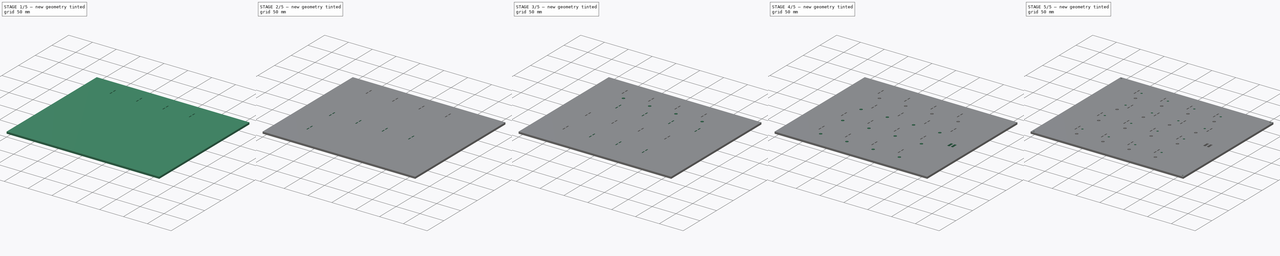
[diagram: build sequence overview — one tinted view per stage of 5, left to right]
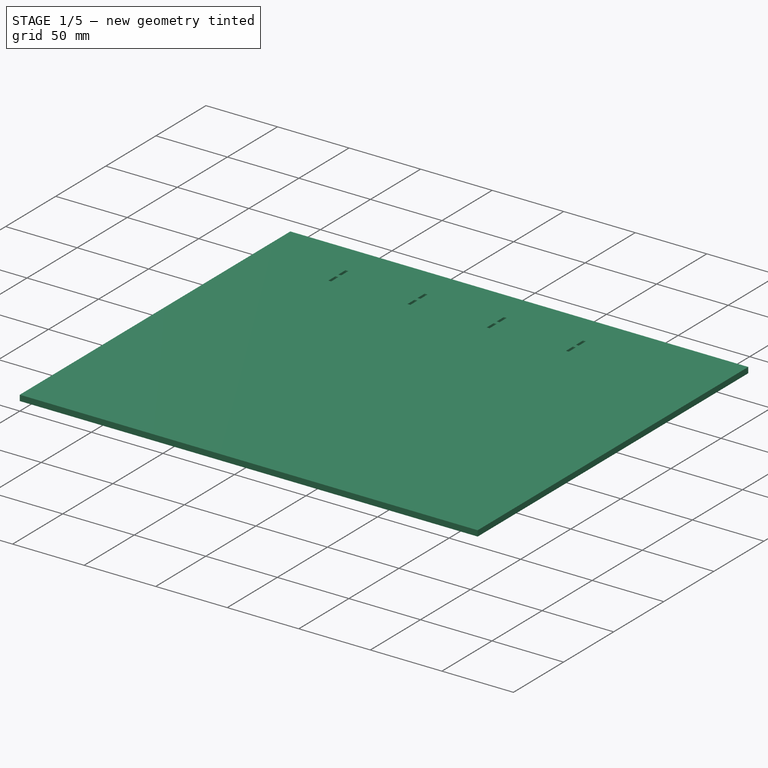
[diagram: stage 1 of 5 — iso view after this stage's code; geometry added in this stage tinted green]
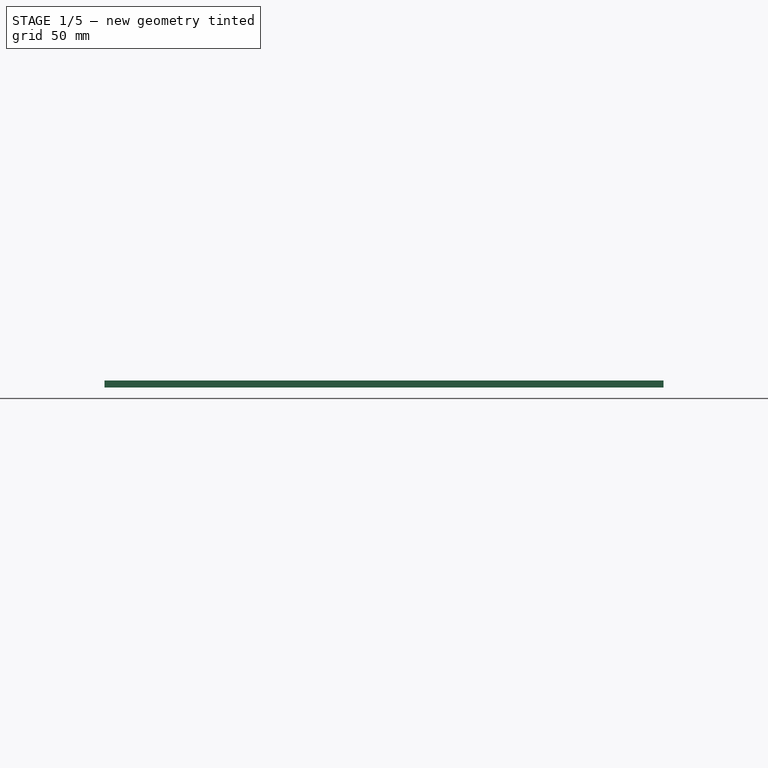
[diagram: stage 1 of 5 — front view after this stage's code; geometry added in this stage tinted green]
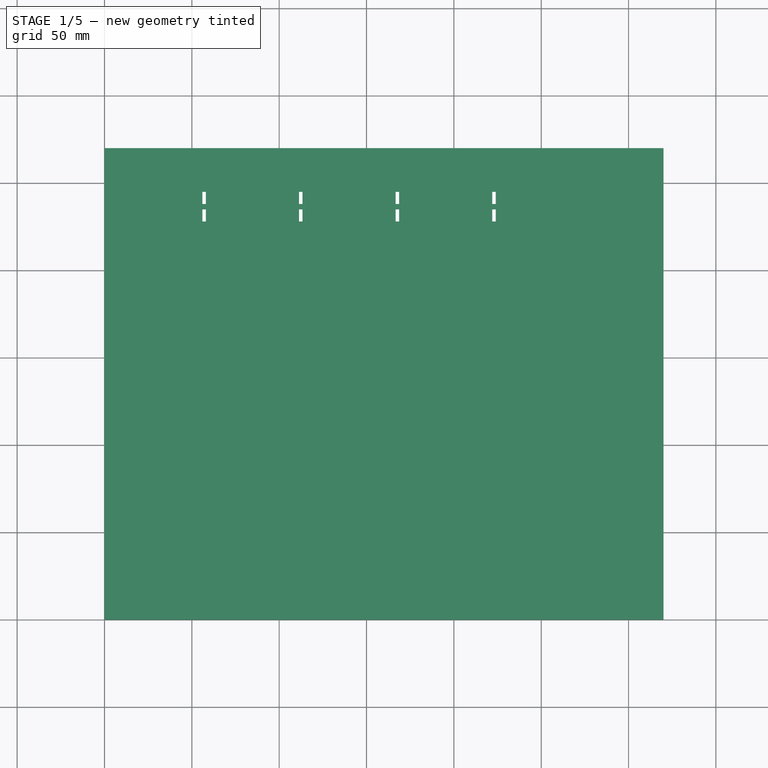
[diagram: stage 1 of 5 — top view after this stage's code; geometry added in this stage tinted green]
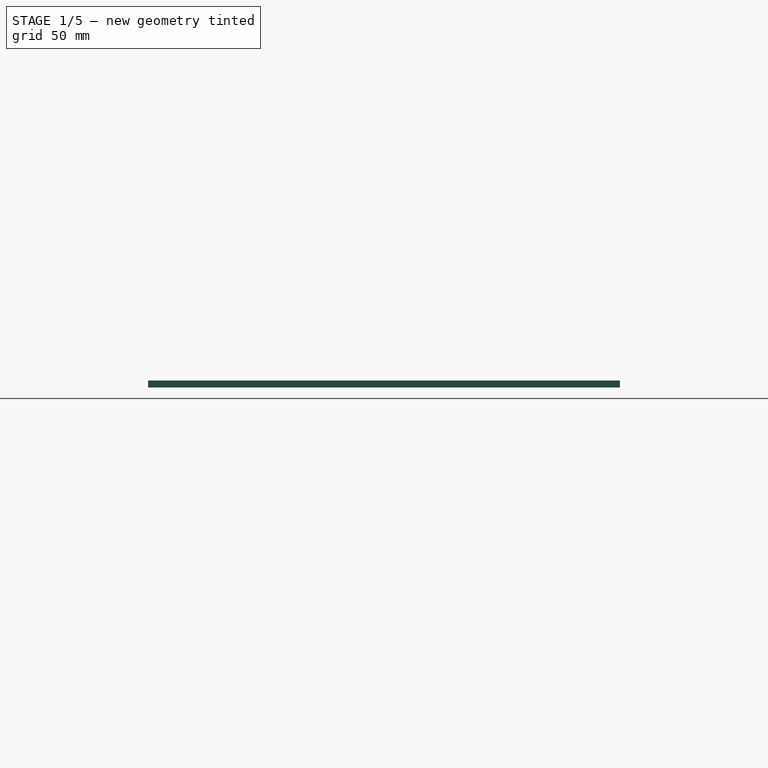
[diagram: stage 1 of 5 — right view after this stage's code; geometry added in this stage tinted green]
FCSTD DOCUMENT  (FreeCAD 0.14R3700 (Git))
Label: interFace-4mm
License: CC-BY 3.0
LicenseURL: http://creativecommons.org/licenses/by/3.0/
objects: Sketcher::SketchObject×10, PartDesign::Pocket×10, PartDesign::LinearPattern×5, Part::Box×1
note: 36 computed .brp shape members not serialized (recipe doc carries the construction recipe); baked Part::Feature solids carry a one-line shape summary decoded from their .brp

FEATURE [Part::Box] Box  label="Cubo"
  Height = 4
  Length = 320
  Width = 270
FEATURE [Sketcher::SketchObject] Sketch
  ExternalGeometry = -> [Box]
  Placement = pos=(0,0,4) rot=(0,0,1;0rad)
  Support = -> Box [Face6]
  sketch-geometry (8):
    g0: LineSegment StartX=56 StartY=245 StartZ=0 EndX=58 EndY=245 EndZ=0
    g1: LineSegment StartX=58 StartY=245 StartZ=0 EndX=58 EndY=238 EndZ=0
    g2: LineSegment StartX=58 StartY=238 StartZ=0 EndX=56 EndY=238 EndZ=0
    g3: LineSegment StartX=56 StartY=238 StartZ=0 EndX=56 EndY=245 EndZ=0
    g4: LineSegment StartX=58 StartY=235 StartZ=0 EndX=56 EndY=235 EndZ=0
    g5: LineSegment StartX=56 StartY=235 StartZ=0 EndX=56 EndY=228 EndZ=0
    g6: LineSegment StartX=56 StartY=228 StartZ=0 EndX=58 EndY=228 EndZ=0
    g7: LineSegment StartX=58 StartY=228 StartZ=0 EndX=58 EndY=235 EndZ=0
  constraints (28):
    c: Coincident(g0,g1)
    c: Coincident(g1,g2)
    c: Coincident(g2,g3)
    c: Coincident(g3,g0)
    c: Horizontal(g0)
    c: Horizontal(g2)
    c: Vertical(g1)
    c: Vertical(g3)
    c: Equal(g2,g0)
    c: Equal(g1,g3)
    c: DistanceX(g0) = 2
    c: DistanceY(g3) = 7
    c: DistanceY(g0,g-3) = 25
    c: DistanceX(g0,g-3) = -56
    c: Coincident(g4,g5)
    c: Coincident(g5,g6)
    c: Coincident(g6,g7)
    c: Coincident(g7,g4)
    c: Horizontal(g4)
    c: Horizontal(g6)
    c: Vertical(g5)
    c: Vertical(g7)
    c: Equal(g4,g6)
    c: DistanceX(g4) = -2
    c: Equal(g7,g5)
    c: DistanceY(g7) = 7
    c: DistanceX(g4,g-3) = -56
    c: DistanceY(g4,g-3) = 35
FEATURE [PartDesign::Pocket] Pocket
  Length = 5
  Sketch = -> Sketch
  Type = 0
FEATURE [PartDesign::LinearPattern] LinearPattern
  Direction = -> Sketch [H_Axis]
  Length = 166
  Occurrences = 4
  Originals = -> [Pocket]
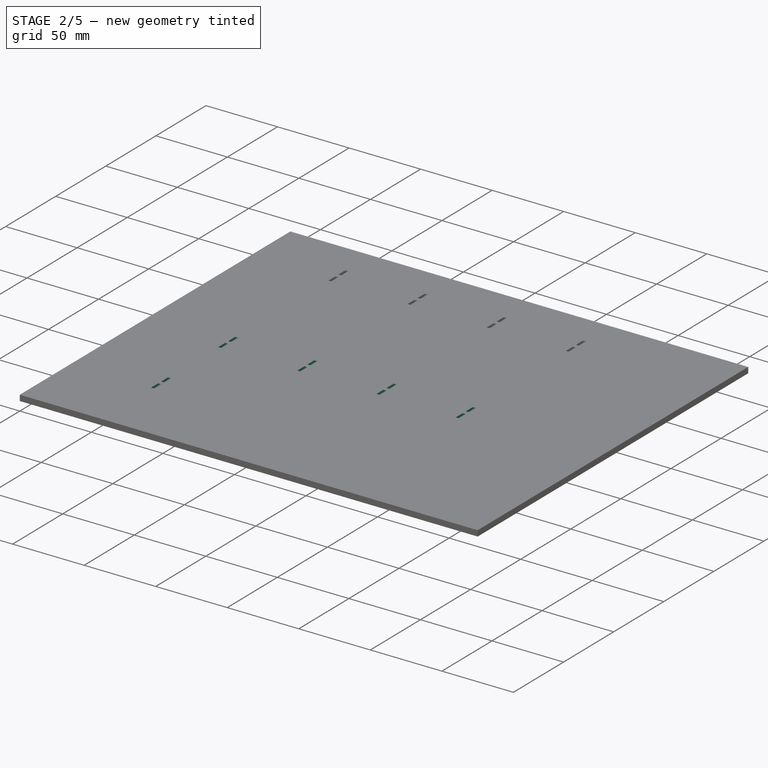
[diagram: stage 2 of 5 — iso view after this stage's code; geometry added in this stage tinted green]
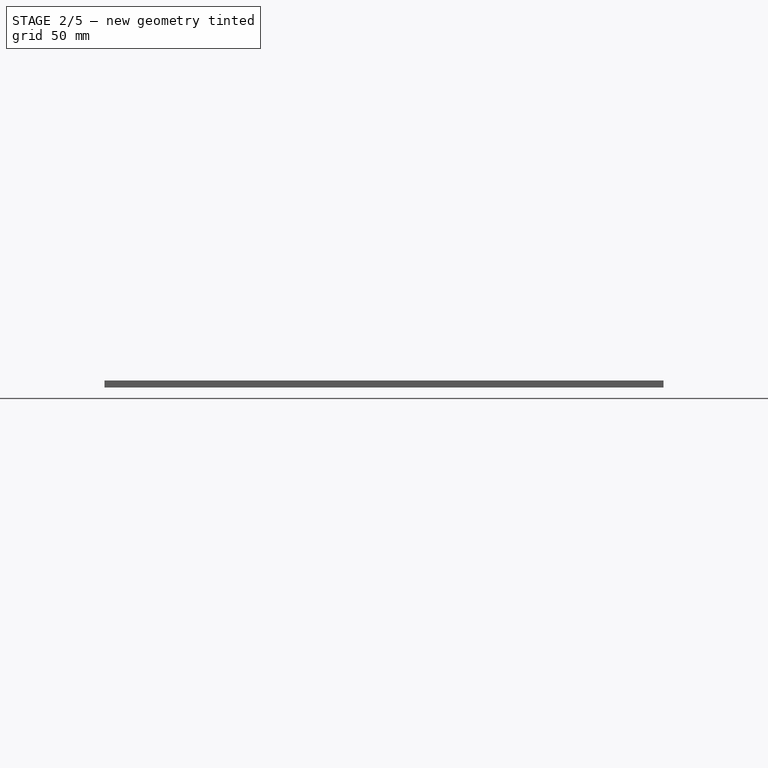
[diagram: stage 2 of 5 — front view after this stage's code; geometry added in this stage tinted green]
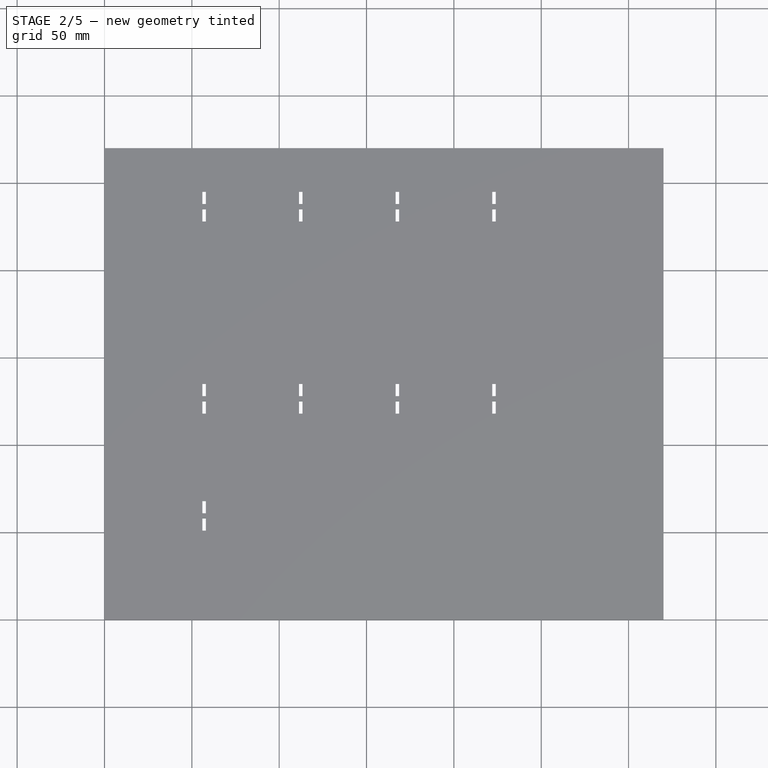
[diagram: stage 2 of 5 — top view after this stage's code; geometry added in this stage tinted green]
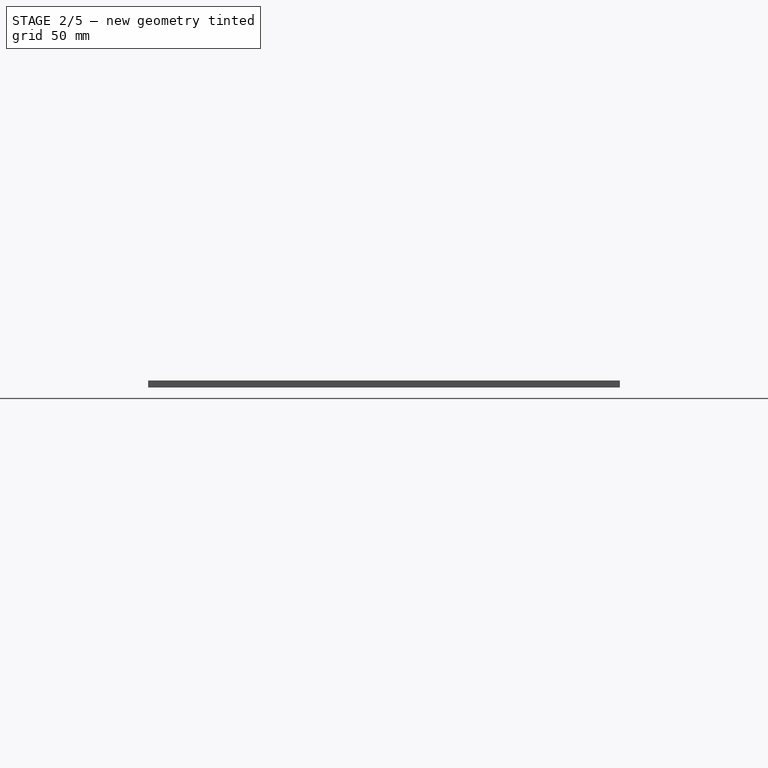
[diagram: stage 2 of 5 — right view after this stage's code; geometry added in this stage tinted green]
FEATURE [Sketcher::SketchObject] Sketch001
  ExternalGeometry = -> [LinearPattern]
  Placement = pos=(0,0,4) rot=(0,0,1;0rad)
  Support = -> LinearPattern [Face3]
  sketch-geometry (8):
    g0: LineSegment StartX=58 StartY=135 StartZ=0 EndX=56 EndY=135 EndZ=0
    g1: LineSegment StartX=56 StartY=135 StartZ=0 EndX=56 EndY=128 EndZ=0
    g2: LineSegment StartX=56 StartY=128 StartZ=0 EndX=58 EndY=128 EndZ=0
    g3: LineSegment StartX=58 StartY=128 StartZ=0 EndX=58 EndY=135 EndZ=0
    g4: LineSegment StartX=58 StartY=125 StartZ=0 EndX=56 EndY=125 EndZ=0
    g5: LineSegment StartX=56 StartY=125 StartZ=0 EndX=56 EndY=118 EndZ=0
    g6: LineSegment StartX=56 StartY=118 StartZ=0 EndX=58 EndY=118 EndZ=0
    g7: LineSegment StartX=58 StartY=118 StartZ=0 EndX=58 EndY=125 EndZ=0
  constraints (28):
    c: Coincident(g0,g1)
    c: Coincident(g1,g2)
    c: Coincident(g2,g3)
    c: Coincident(g3,g0)
    c: Horizontal(g0)
    c: Horizontal(g2)
    c: Vertical(g1)
    c: Vertical(g3)
    c: Coincident(g4,g5)
    c: Coincident(g5,g6)
    c: Coincident(g6,g7)
    c: Coincident(g7,g4)
    c: Horizontal(g4)
    c: Horizontal(g6)
    c: Vertical(g5)
    c: Vertical(g7)
    c: Equal(g0,g2)
    c: Equal(g2,g4)
    c: Equal(g4,g6)
    c: Equal(g3,g1)
    c: Equal(g1,g5)
    c: Equal(g5,g7)
    c: DistanceX(g0) = -2
    c: DistanceY(g7) = 7
    c: DistanceY(g0,g-3) = 135
    c: DistanceX(g0,g-3) = -56
    c: DistanceX(g4,g-3) = -56
    c: DistanceY(g4,g-3) = 145
FEATURE [PartDesign::Pocket] Pocket001
  Length = 5
  Sketch = -> Sketch001
  Type = 0
FEATURE [PartDesign::LinearPattern] LinearPattern001
  Direction = -> Sketch001 [H_Axis]
  Length = 166
  Occurrences = 4
  Originals = -> [Pocket001]
FEATURE [Sketcher::SketchObject] Sketch002
  ExternalGeometry = -> [LinearPattern001]
  Placement = pos=(0,0,4) rot=(0,0,1;0rad)
  Support = -> LinearPattern001 [Face3]
  sketch-geometry (8):
    g0: LineSegment StartX=58 StartY=68 StartZ=0 EndX=56 EndY=68 EndZ=0
    g1: LineSegment StartX=56 StartY=68 StartZ=0 EndX=56 EndY=61 EndZ=0
    g2: LineSegment StartX=56 StartY=61 StartZ=0 EndX=58 EndY=61 EndZ=0
    g3: LineSegment StartX=58 StartY=61 StartZ=0 EndX=58 EndY=68 EndZ=0
    g4: LineSegment StartX=58 StartY=58 StartZ=0 EndX=56 EndY=58 EndZ=0
    g5: LineSegment StartX=56 StartY=58 StartZ=0 EndX=56 EndY=51 EndZ=0
    g6: LineSegment StartX=56 StartY=51 StartZ=0 EndX=58 EndY=51 EndZ=0
    g7: LineSegment StartX=58 StartY=51 StartZ=0 EndX=58 EndY=58 EndZ=0
  constraints (28):
    c: Coincident(g0,g1)
    c: Coincident(g1,g2)
    c: Coincident(g2,g3)
    c: Coincident(g3,g0)
    c: Horizontal(g0)
    c: Horizontal(g2)
    c: Vertical(g1)
    c: Vertical(g3)
    c: Coincident(g4,g5)
    c: Coincident(g5,g6)
    c: Coincident(g6,g7)
    c: Coincident(g7,g4)
    c: Horizontal(g4)
    c: Horizontal(g6)
    c: Vertical(g5)
    c: Vertical(g7)
    c: Equal(g0,g2)
    c: Equal(g2,g4)
    c: Equal(g4,g6)
    c: DistanceX(g0) = -2
    c: Equal(g7,g5)
    c: Equal(g5,g3)
    c: Equal(g3,g1)
    c: DistanceY(g3) = 7
    c: DistanceX(g-1,g5) = 56
    c: DistanceX(g-1,g1) = 56
    c: DistanceY(g-1,g5) = 51
    c: DistanceY(g-1,g1) = 61
FEATURE [PartDesign::Pocket] Pocket002
  Length = 5
  Sketch = -> Sketch002
  Type = 0
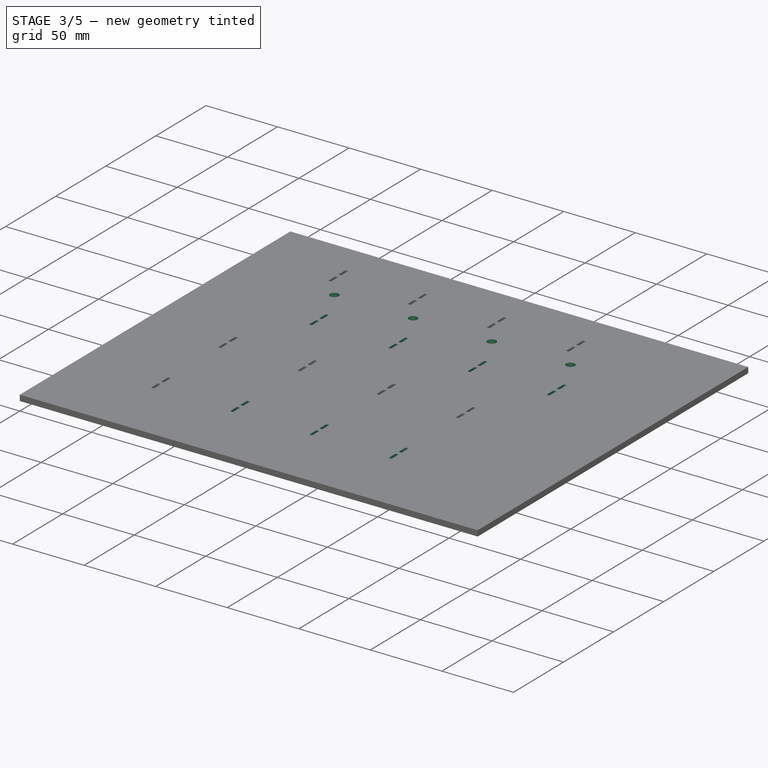
[diagram: stage 3 of 5 — iso view after this stage's code; geometry added in this stage tinted green]
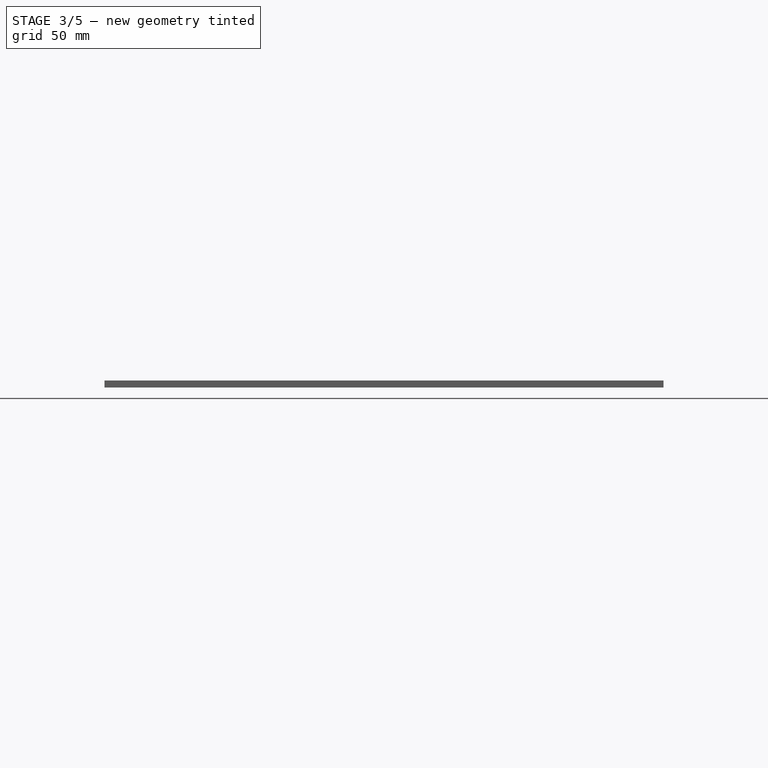
[diagram: stage 3 of 5 — front view after this stage's code; geometry added in this stage tinted green]
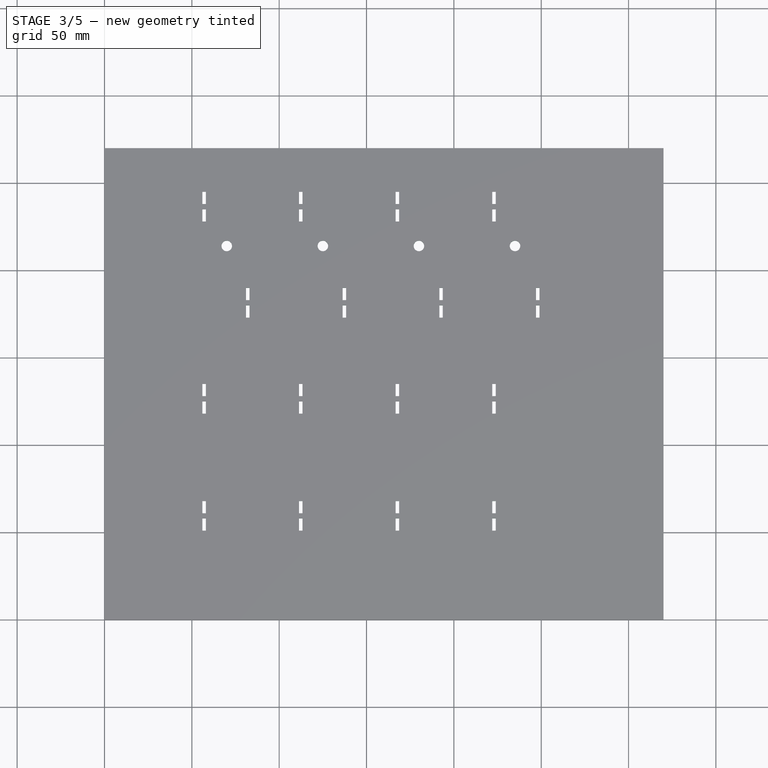
[diagram: stage 3 of 5 — top view after this stage's code; geometry added in this stage tinted green]
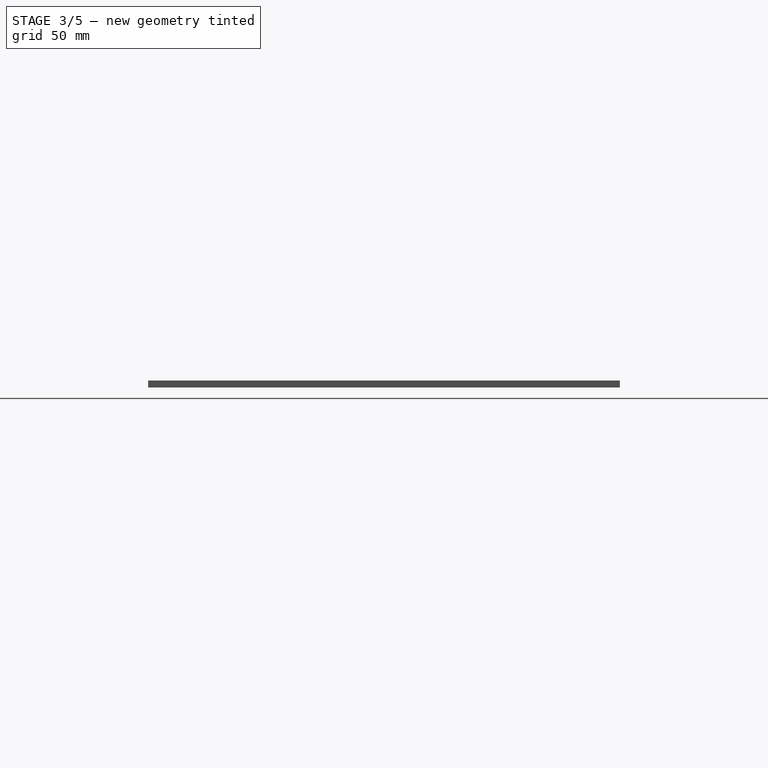
[diagram: stage 3 of 5 — right view after this stage's code; geometry added in this stage tinted green]
FEATURE [PartDesign::LinearPattern] LinearPattern002
  Direction = -> Sketch002 [H_Axis]
  Length = 166
  Occurrences = 4
  Originals = -> [Pocket002]
FEATURE [Sketcher::SketchObject] Sketch003
  ExternalGeometry = -> [LinearPattern002]
  Placement = pos=(0,0,4) rot=(0,0,1;0rad)
  Support = -> LinearPattern002 [Face3]
  sketch-geometry (8):
    g0: LineSegment StartX=83 StartY=190 StartZ=0 EndX=81 EndY=190 EndZ=0
    g1: LineSegment StartX=81 StartY=190 StartZ=0 EndX=81 EndY=183 EndZ=0
    g2: LineSegment StartX=81 StartY=183 StartZ=0 EndX=83 EndY=183 EndZ=0
    g3: LineSegment StartX=83 StartY=183 StartZ=0 EndX=83 EndY=190 EndZ=0
    g4: LineSegment StartX=83 StartY=180 StartZ=0 EndX=81 EndY=180 EndZ=0
    g5: LineSegment StartX=81 StartY=180 StartZ=0 EndX=81 EndY=173 EndZ=0
    g6: LineSegment StartX=81 StartY=173 StartZ=0 EndX=83 EndY=173 EndZ=0
    g7: LineSegment StartX=83 StartY=173 StartZ=0 EndX=83 EndY=180 EndZ=0
  constraints (28):
    c: Coincident(g0,g1)
    c: Coincident(g1,g2)
    c: Coincident(g2,g3)
    c: Coincident(g3,g0)
    c: Horizontal(g0)
    c: Horizontal(g2)
    c: Vertical(g1)
    c: Vertical(g3)
    c: Coincident(g4,g5)
    c: Coincident(g5,g6)
    c: Coincident(g6,g7)
    c: Coincident(g7,g4)
    c: Horizontal(g4)
    c: Horizontal(g6)
    c: Vertical(g5)
    c: Vertical(g7)
    c: Equal(g0,g2)
    c: Equal(g2,g4)
    c: Equal(g4,g6)
    c: Equal(g3,g1)
    c: Equal(g1,g5)
    c: Equal(g5,g7)
    c: DistanceX(g0) = -2
    c: DistanceY(g7) = 7
    c: DistanceX(g0,g-3) = -81
    c: DistanceY(g0,g-3) = 80
    c: DistanceY(g4,g-3) = 90
    c: DistanceX(g4,g-3) = -81
FEATURE [PartDesign::Pocket] Pocket003
  Length = 5
  Sketch = -> Sketch003
  Type = 0
FEATURE [PartDesign::LinearPattern] LinearPattern003
  Direction = -> Sketch003 [H_Axis]
  Length = 166
  Occurrences = 4
  Originals = -> [Pocket003]
FEATURE [Sketcher::SketchObject] Sketch004
  ExternalGeometry = -> [LinearPattern003]
  Placement = pos=(0,0,4) rot=(0,0,1;0rad)
  Support = -> LinearPattern003 [Face3]
  sketch-geometry (4):
    g0: Circle CenterX=70 CenterY=214 CenterZ=0 NormalX=0 NormalY=0 NormalZ=1 Radius=3
    g1: Circle CenterX=125 CenterY=214 CenterZ=0 NormalX=0 NormalY=0 NormalZ=1 Radius=3
    g2: Circle CenterX=180 CenterY=214 CenterZ=0 NormalX=0 NormalY=0 NormalZ=1 Radius=3
    g3: Circle CenterX=235 CenterY=214 CenterZ=0 NormalX=0 NormalY=0 NormalZ=1 Radius=3
  constraints (12):
    c: Radius(g0) = 3
    c: DistanceX(g0,g-3) = -70
    c: DistanceY(g0,g-3) = 56
    c: Equal(g0,g1)
    c: Equal(g1,g2)
    c: Equal(g2,g3)
    c: DistanceX(g0,g1) = 55
    c: DistanceY(g1,g-3) = 56
    c: DistanceX(g1,g2) = 55
    c: DistanceX(g2,g3) = 55
    c: DistanceY(g2,g-3) = 56
    c: DistanceY(g3,g-3) = 56
FEATURE [PartDesign::Pocket] Pocket004
  Length = 5
  Sketch = -> Sketch004
  Type = 0
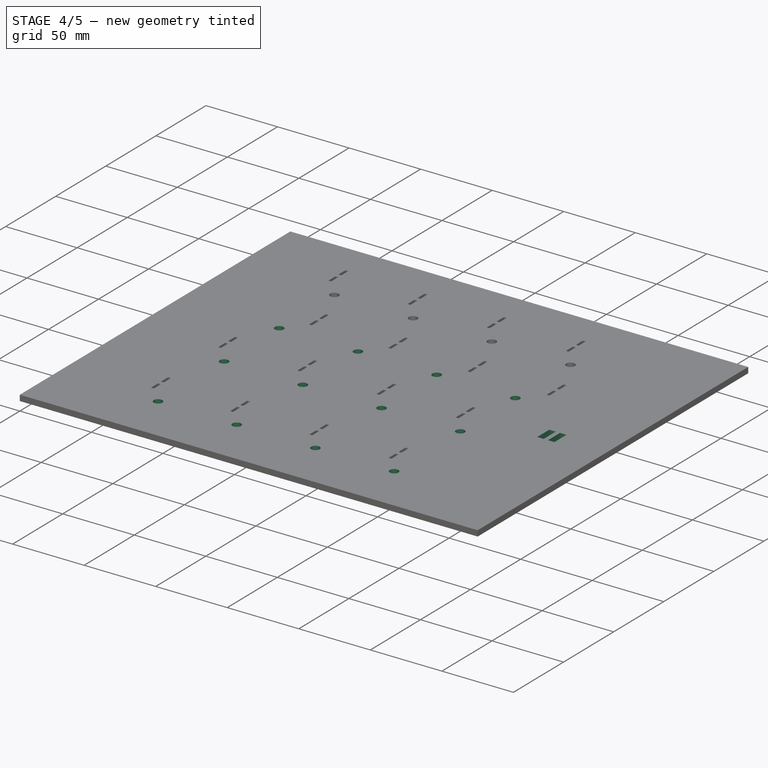
[diagram: stage 4 of 5 — iso view after this stage's code; geometry added in this stage tinted green]
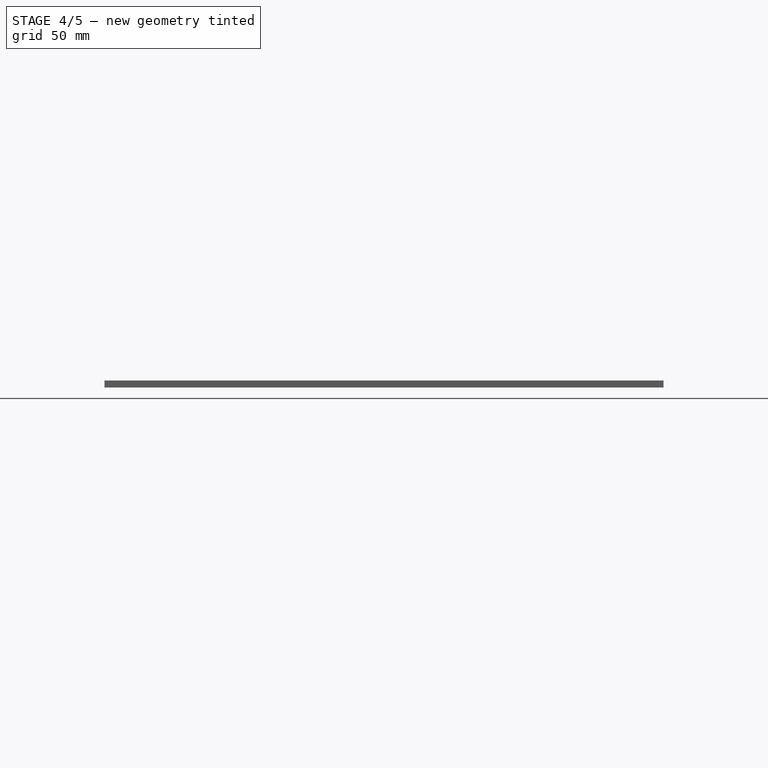
[diagram: stage 4 of 5 — front view after this stage's code; geometry added in this stage tinted green]
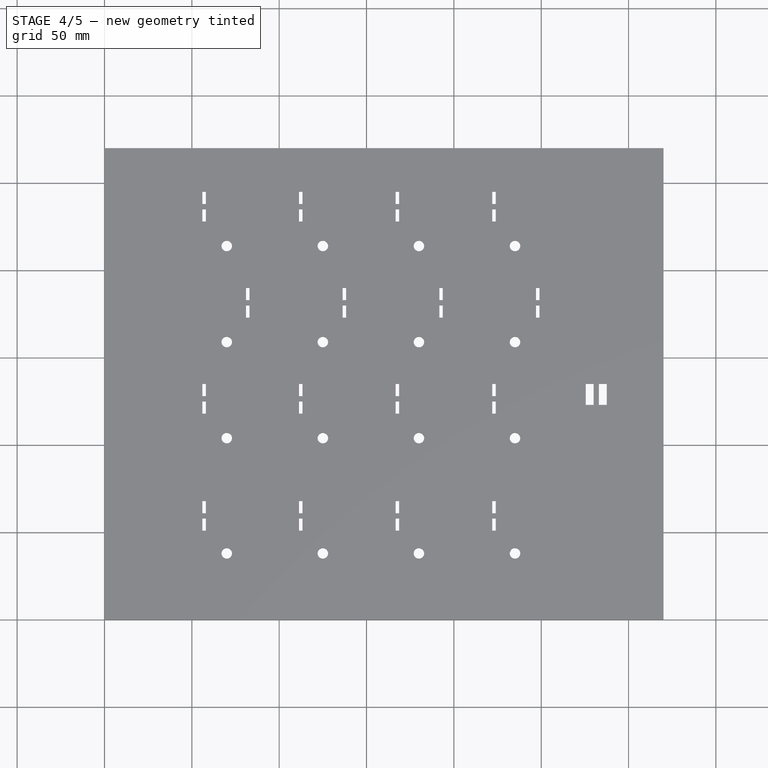
[diagram: stage 4 of 5 — top view after this stage's code; geometry added in this stage tinted green]
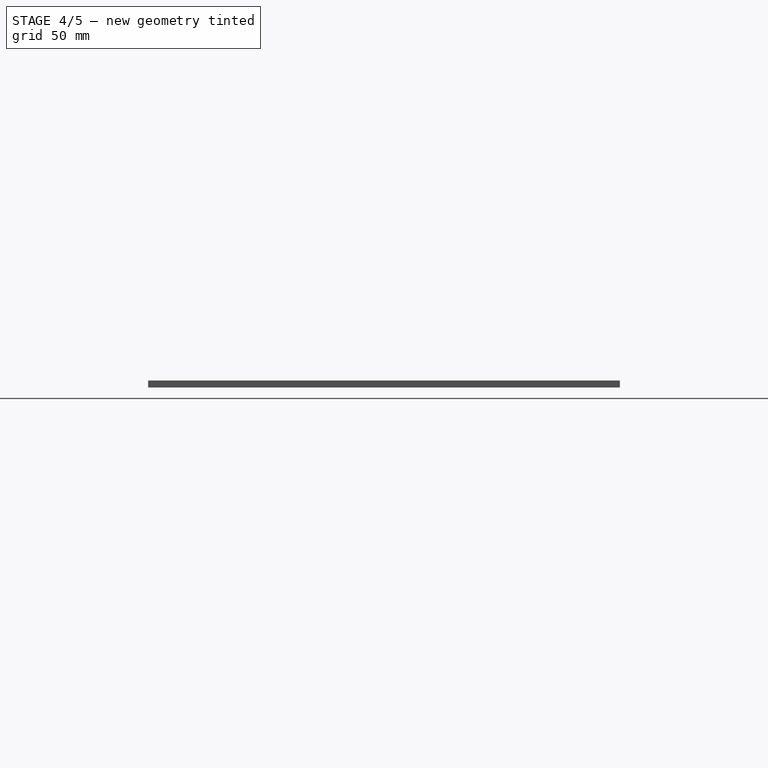
[diagram: stage 4 of 5 — right view after this stage's code; geometry added in this stage tinted green]
FEATURE [PartDesign::LinearPattern] LinearPattern004
  Direction = -> Sketch004 [V_Axis]
  Length = 110
  Occurrences = 3
  Originals = -> [Pocket004]
  Reversed = true
FEATURE [Sketcher::SketchObject] Sketch005
  Placement = pos=(0,0,4) rot=(0,0,1;0rad)
  Support = -> LinearPattern004 [Face3]
  sketch-geometry (4):
    g0: Circle CenterX=70 CenterY=38 CenterZ=0 NormalX=0 NormalY=0 NormalZ=1 Radius=3
    g1: Circle CenterX=125 CenterY=38 CenterZ=0 NormalX=0 NormalY=0 NormalZ=1 Radius=3
    g2: Circle CenterX=180 CenterY=38 CenterZ=0 NormalX=0 NormalY=0 NormalZ=1 Radius=3
    g3: Circle CenterX=235 CenterY=38 CenterZ=0 NormalX=0 NormalY=0 NormalZ=1 Radius=3
  constraints (12):
    c: Equal(g0,g1)
    c: Equal(g1,g2)
    c: Equal(g2,g3)
    c: Radius(g0) = 3
    c: DistanceX(g-1,g0) = 70
    c: DistanceY(g-1,g0) = 38
    c: DistanceX(g0,g1) = 55
    c: DistanceY(g-1,g1) = 38
    c: DistanceX(g2,g1) = -55
    c: DistanceY(g-1,g2) = 38
    c: DistanceY(g-1,g3) = 38
    c: DistanceX(g3,g2) = -55
FEATURE [PartDesign::Pocket] Pocket005
  Length = 5
  Sketch = -> Sketch005
  Type = 0
FEATURE [Sketcher::SketchObject] Sketch006
  Placement = pos=(0,0,4) rot=(0,0,1;0rad)
  Support = -> Pocket005 [Face3]
  sketch-geometry (8):
    g0: LineSegment StartX=280 StartY=135 StartZ=0 EndX=275.5 EndY=135 EndZ=0
    g1: LineSegment StartX=275.5 StartY=135 StartZ=0 EndX=275.5 EndY=123 EndZ=0
    g2: LineSegment StartX=275.5 StartY=123 StartZ=0 EndX=280 EndY=123 EndZ=0
    g3: LineSegment StartX=280 StartY=123 StartZ=0 EndX=280 EndY=135 EndZ=0
    g4: LineSegment StartX=283 StartY=135 StartZ=0 EndX=287.5 EndY=135 EndZ=0
    g5: LineSegment StartX=287.5 StartY=135 StartZ=0 EndX=287.5 EndY=123 EndZ=0
    g6: LineSegment StartX=287.5 StartY=123 StartZ=0 EndX=283 EndY=123 EndZ=0
    g7: LineSegment StartX=283 StartY=123 StartZ=0 EndX=283 EndY=135 EndZ=0
  constraints (25):
    c: Coincident(g0,g1)
    c: Coincident(g1,g2)
    c: Coincident(g2,g3)
    c: Coincident(g3,g0)
    c: Horizontal(g0)
    c: Horizontal(g2)
    c: Vertical(g1)
    c: Vertical(g3)
    c: Coincident(g4,g5)
    c: Coincident(g5,g6)
    c: Coincident(g6,g7)
    c: Coincident(g7,g4)
    c: Horizontal(g4)
    c: Horizontal(g6)
    c: Vertical(g5)
    c: Vertical(g7)
    c: Equal(g6,g4)
    c: Equal(g4,g0)
    c: Equal(g0,g2)
    c: DistanceX(g4) = 4.5
    c: Equal(g7,g5)
    c: Equal(g5,g3)
    c: Equal(g3,g1)
    c: DistanceY(g7) = 12
    c: DistanceX(g2,g6) = 3
FEATURE [PartDesign::Pocket] Pocket006  label="interFace-4mm"
  Length = 5
  Sketch = -> Sketch006
  Type = 0
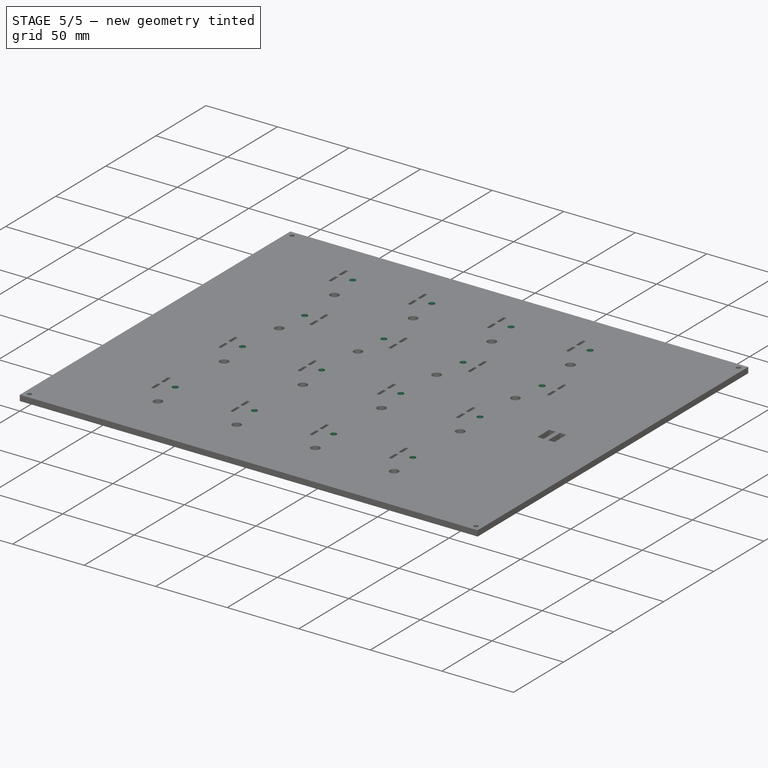
[diagram: stage 5 of 5 — iso view after this stage's code; geometry added in this stage tinted green]
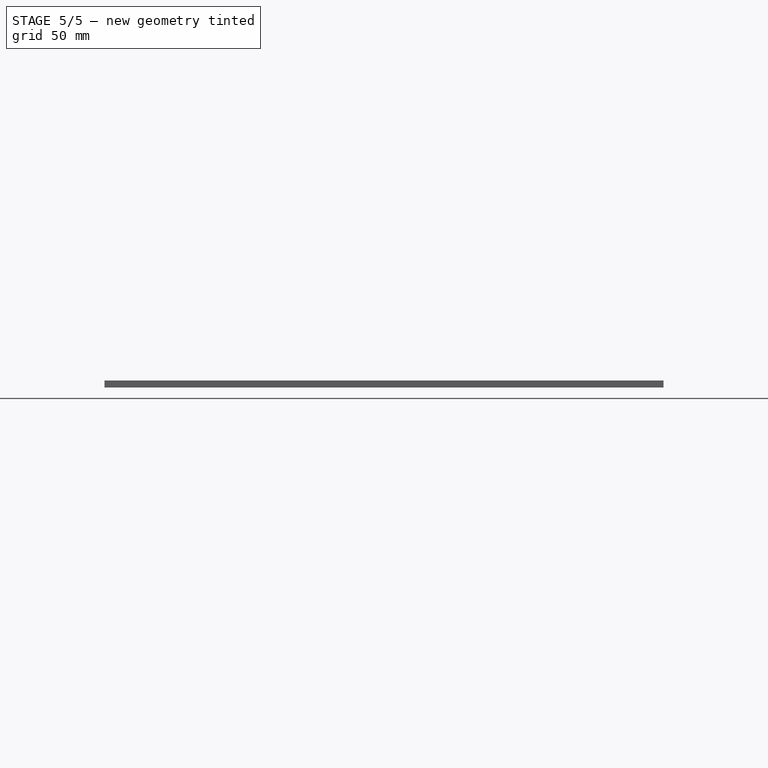
[diagram: stage 5 of 5 — front view after this stage's code; geometry added in this stage tinted green]
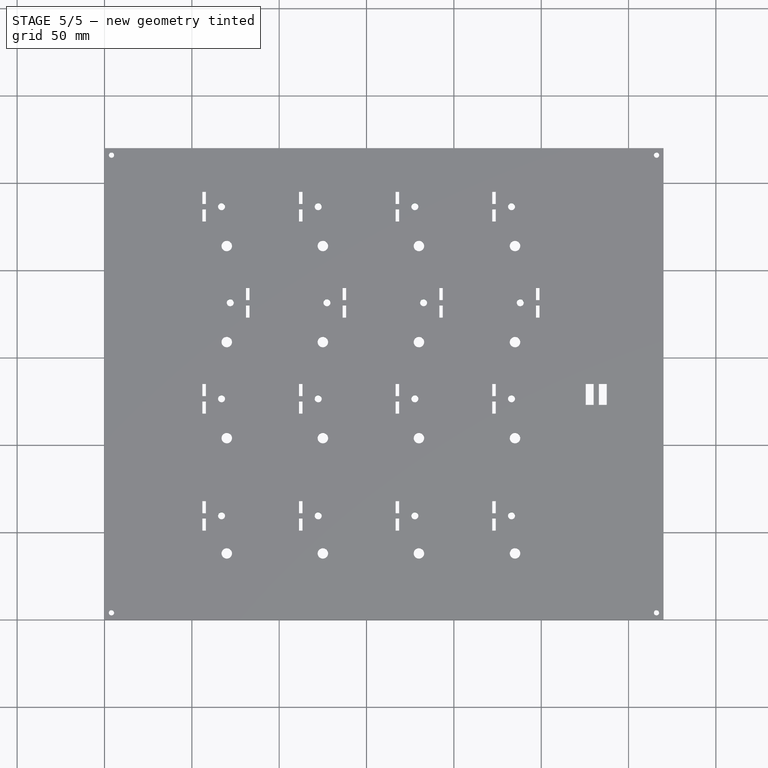
[diagram: stage 5 of 5 — top view after this stage's code; geometry added in this stage tinted green]
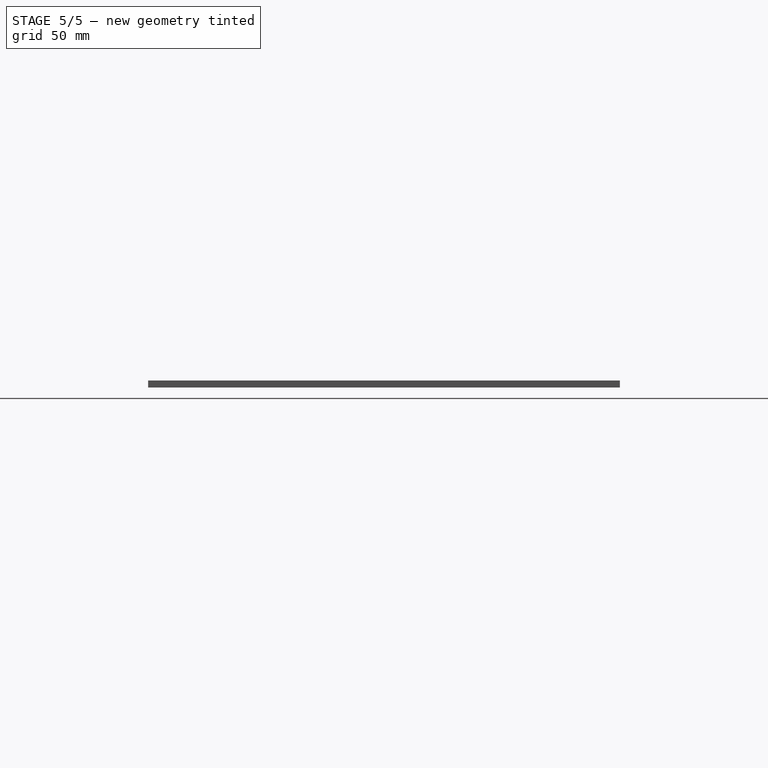
[diagram: stage 5 of 5 — right view after this stage's code; geometry added in this stage tinted green]
FEATURE [Sketcher::SketchObject] Sketch007
  Placement = pos=(0,0,4) rot=(0,0,1;0rad)
  Support = -> Pocket006 [Face3]
  sketch-geometry (16):
    g0: Circle CenterX=67 CenterY=236.5 CenterZ=0 NormalX=0 NormalY=0 NormalZ=1 Radius=2
    g1: Circle CenterX=122.333 CenterY=236.5 CenterZ=0 NormalX=0 NormalY=0 NormalZ=1 Radius=2
    g2: Circle CenterX=177.667 CenterY=236.5 CenterZ=0 NormalX=0 NormalY=0 NormalZ=1 Radius=2
    g3: Circle CenterX=233 CenterY=236.5 CenterZ=0 NormalX=0 NormalY=0 NormalZ=1 Radius=2
    g4: Circle CenterX=72 CenterY=181.5 CenterZ=0 NormalX=0 NormalY=0 NormalZ=1 Radius=2
    g5: Circle CenterX=127.333 CenterY=181.5 CenterZ=0 NormalX=0 NormalY=0 NormalZ=1 Radius=2
    g6: Circle CenterX=182.667 CenterY=181.5 CenterZ=0 NormalX=0 NormalY=0 NormalZ=1 Radius=2
    g7: Circle CenterX=238 CenterY=181.5 CenterZ=0 NormalX=0 NormalY=0 NormalZ=1 Radius=2
    g8: Circle CenterX=67 CenterY=126.5 CenterZ=0 NormalX=0 NormalY=0 NormalZ=1 Radius=2
    g9: Circle CenterX=122.333 CenterY=126.5 CenterZ=0 NormalX=0 NormalY=0 NormalZ=1 Radius=2
    g10: Circle CenterX=177.667 CenterY=126.5 CenterZ=0 NormalX=0 NormalY=0 NormalZ=1 Radius=2
    g11: Circle CenterX=233 CenterY=126.5 CenterZ=0 NormalX=0 NormalY=0 NormalZ=1 Radius=2
    g12: Circle CenterX=67 CenterY=59.5 CenterZ=0 NormalX=0 NormalY=0 NormalZ=1 Radius=2
    g13: Circle CenterX=122.333 CenterY=59.5 CenterZ=0 NormalX=0 NormalY=0 NormalZ=1 Radius=2
    g14: Circle CenterX=177.667 CenterY=59.5 CenterZ=0 NormalX=0 NormalY=0 NormalZ=1 Radius=2
    g15: Circle CenterX=233 CenterY=59.5 CenterZ=0 NormalX=0 NormalY=0 NormalZ=1 Radius=2
  constraints (16):
    c: Equal(g0,g1)
    c: Equal(g1,g3)
    c: Equal(g3,g2)
    c: Radius(g0) = 2
    c: Equal(g7,g6)
    c: Equal(g6,g5)
    c: Equal(g5,g4)
    c: Radius(g7) = 2
    c: Equal(g11,g10)
    c: Equal(g10,g9)
    c: Equal(g9,g8)
    c: Radius(g11) = 2
    c: Equal(g15,g14)
    c: Equal(g14,g13)
    c: Equal(g13,g12)
    c: Radius(g15) = 2
FEATURE [PartDesign::Pocket] Pocket007  label="interFace-4mm(4)"
  Length = 5
  Sketch = -> Sketch007
  Type = 0
FEATURE [Sketcher::SketchObject] Sketch008
  ExternalGeometry = -> [Pocket007]
  Placement = pos=(0,0,4) rot=(0,0,1;0rad)
  Support = -> Pocket007 [Face3]
  sketch-geometry (4):
    g0: Circle CenterX=4 CenterY=4 CenterZ=0 NormalX=0 NormalY=0 NormalZ=1 Radius=1.5
    g1: Circle CenterX=4 CenterY=266 CenterZ=0 NormalX=0 NormalY=0 NormalZ=1 Radius=1.5
    g2: Circle CenterX=316 CenterY=266 CenterZ=0 NormalX=0 NormalY=0 NormalZ=1 Radius=1.5
    g3: Circle CenterX=316 CenterY=4 CenterZ=0 NormalX=0 NormalY=0 NormalZ=1 Radius=1.5
  constraints (12):
    c: Radius(g0) = 1.5
    c: DistanceY(g-1,g0) = 4
    c: DistanceX(g-1,g0) = 4
    c: Radius(g1) = 1.5
    c: DistanceY(g1,g-3) = 4
    c: DistanceX(g1,g-3) = -4
    c: Radius(g2) = 1.5
    c: DistanceX(g2,g-3) = 4
    c: DistanceY(g2,g-3) = 4
    c: Radius(g3) = 1.5
    c: DistanceX(g3,g-4) = 4
    c: DistanceY(g3,g-4) = -4
FEATURE [PartDesign::Pocket] Pocket008  label="interFace-4mm(4)001"
  Length = 5
  Sketch = -> Sketch008
  Type = 0
FEATURE [Sketcher::SketchObject] Sketch009
  ExternalGeometry = -> [Pocket008]
  Placement = pos=(0,0,0) rot=(1,0,0;3.14159rad)
  Support = -> Pocket008 [Face5]
  sketch-geometry (36):
    g0: LineSegment StartX=2.41229 StartY=-263.25 StartZ=0 EndX=5.58771 EndY=-263.25 EndZ=0
    g1: LineSegment StartX=5.58771 StartY=-263.25 StartZ=0 EndX=7.17543 EndY=-266 EndZ=0
    g2: LineSegment StartX=7.17543 StartY=-266 StartZ=0 EndX=5.58771 EndY=-268.75 EndZ=0
    g3: LineSegment StartX=5.58771 StartY=-268.75 StartZ=0 EndX=2.41229 EndY=-268.75 EndZ=0
    g4: LineSegment StartX=2.41229 StartY=-268.75 StartZ=0 EndX=0.824574 EndY=-266 EndZ=0
    g5: LineSegment StartX=0.824574 StartY=-266 StartZ=0 EndX=2.41229 EndY=-263.25 EndZ=0
    g6: LineSegment [constr] StartX=0.824574 StartY=-266 StartZ=0 EndX=7.17543 EndY=-266 EndZ=0
    g7: LineSegment [constr] StartX=4 StartY=-268.75 StartZ=0 EndX=4 EndY=-263.25 EndZ=0
    g8: LineSegment [constr] StartX=4 StartY=-266 StartZ=0 EndX=5.58771 EndY=-263.25 EndZ=0
    g9: LineSegment StartX=2.41229 StartY=-1.25 StartZ=0 EndX=5.58771 EndY=-1.25 EndZ=0
    g10: LineSegment StartX=5.58771 StartY=-1.25 StartZ=0 EndX=7.17543 EndY=-4 EndZ=0
    g11: LineSegment StartX=7.17543 StartY=-4 StartZ=0 EndX=5.58771 EndY=-6.75 EndZ=0
    g12: LineSegment StartX=5.58771 StartY=-6.75 StartZ=0 EndX=2.41229 EndY=-6.75 EndZ=0
    g13: LineSegment StartX=2.41229 StartY=-6.75 StartZ=0 EndX=0.824574 EndY=-4 EndZ=0
    g14: LineSegment StartX=0.824574 StartY=-4 StartZ=0 EndX=2.41229 EndY=-1.25 EndZ=0
    g15: LineSegment [constr] StartX=0.824574 StartY=-4 StartZ=0 EndX=7.17543 EndY=-4 EndZ=0
    g16: LineSegment [constr] StartX=4 StartY=-1.25 StartZ=0 EndX=4 EndY=-6.75 EndZ=0
    g17: LineSegment [constr] StartX=5.58771 StartY=-1.25 StartZ=0 EndX=4 EndY=-4 EndZ=0
    g18: LineSegment StartX=314.412 StartY=-1.25 StartZ=0 EndX=317.588 EndY=-1.25 EndZ=0
    g19: LineSegment StartX=317.588 StartY=-1.25 StartZ=0 EndX=319.175 EndY=-4 EndZ=0
    g20: LineSegment StartX=319.175 StartY=-4 StartZ=0 EndX=317.588 EndY=-6.75 EndZ=0
    g21: LineSegment StartX=317.588 StartY=-6.75 StartZ=0 EndX=314.412 EndY=-6.75 EndZ=0
    g22: LineSegment StartX=314.412 StartY=-6.75 StartZ=0 EndX=312.825 EndY=-4 EndZ=0
    g23: LineSegment StartX=312.825 StartY=-4 StartZ=0 EndX=314.412 EndY=-1.25 EndZ=0
    g24: LineSegment [constr] StartX=312.825 StartY=-4 StartZ=0 EndX=319.175 EndY=-4 EndZ=0
    g25: LineSegment [constr] StartX=316 StartY=-1.25 StartZ=0 EndX=316 EndY=-6.75 EndZ=0
    g26: LineSegment [constr] StartX=317.588 StartY=-1.25 StartZ=0 EndX=316 EndY=-4 EndZ=0
    g27: LineSegment StartX=314.412 StartY=-263.25 StartZ=0 EndX=317.588 EndY=-263.25 EndZ=0
    g28: LineSegment StartX=317.588 StartY=-263.25 StartZ=0 EndX=319.175 EndY=-266 EndZ=0
    g29: LineSegment StartX=319.175 StartY=-266 StartZ=0 EndX=317.588 EndY=-268.75 EndZ=0
    g30: LineSegment StartX=317.588 StartY=-268.75 StartZ=0 EndX=314.412 EndY=-268.75 EndZ=0
    g31: LineSegment StartX=314.412 StartY=-268.75 StartZ=0 EndX=312.825 EndY=-266 EndZ=0
    g32: LineSegment StartX=312.825 StartY=-266 StartZ=0 EndX=314.412 EndY=-263.25 EndZ=0
    g33: LineSegment [constr] StartX=312.825 StartY=-266 StartZ=0 EndX=319.175 EndY=-266 EndZ=0
    g34: LineSegment [constr] StartX=316 StartY=-263.25 StartZ=0 EndX=316 EndY=-268.75 EndZ=0
    g35: LineSegment [constr] StartX=317.588 StartY=-263.25 StartZ=0 EndX=316 EndY=-266 EndZ=0
  constraints (107):
    c: Horizontal(g0)
    c: Coincident(g0,g1)
    c: Coincident(g1,g2)
    c: Coincident(g2,g3)
    c: Horizontal(g3)
    c: Coincident(g3,g4)
    c: Coincident(g4,g5)
    c: Coincident(g5,g0)
    c: Equal(g1,g2)
    c: Equal(g2,g3)
    c: Equal(g3,g4)
    c: Equal(g4,g5)
    c: Equal(g5,g0)
    c: Coincident(g6,g4)
    c: Coincident(g6,g1)
    c: Horizontal(g6)
    c: PointOnObject(g7,g3)
    c: PointOnObject(g7,g0)
    c: Symmetric(g3,g2,g7)
    c: DistanceY(g7) = 5.5
    c: Symmetric(g7,g7,g6)
    c: PointOnObject(g8,g6)
    c: Coincident(g8,g0)
    c: Angle(g8,g1) = 1.0472
    c: Angle(g6,g8) = 1.0472
    c: DistanceX(g-3,g8) = 4
    c: DistanceY(g8,g-3) = -4
    c: Horizontal(g9)
    c: Coincident(g9,g10)
    c: Coincident(g10,g11)
    c: Coincident(g11,g12)
    c: Coincident(g12,g13)
    c: Coincident(g13,g14)
    c: Coincident(g14,g9)
    c: Equal(g9,g14)
    c: Equal(g14,g13)
    c: Equal(g13,g12)
    c: Equal(g12,g10)
    c: Equal(g10,g11)
    c: Coincident(g15,g13)
    c: Coincident(g15,g10)
    c: Horizontal(g15)
    c: PointOnObject(g16,g9)
    c: PointOnObject(g16,g12)
    c: Vertical(g16)
    c: Symmetric(g13,g10,g16)
    c: Coincident(g17,g9)
    c: PointOnObject(g17,g15)
    c: Angle(g17,g10) = 1.0472
    c: DistanceY(g16) = -5.5
    c: Horizontal(g12)
    c: Angle(g10,g15) = 1.0472
    c: DistanceX(g-1,g17) = 4
    c: DistanceY(g-1,g17) = -4
    c: Horizontal(g18)
    c: Coincident(g18,g19)
    c: Coincident(g19,g20)
    c: Coincident(g20,g21)
    c: Coincident(g21,g22)
    c: Coincident(g22,g23)
    c: Coincident(g23,g18)
    c: Equal(g18,g23)
    c: Equal(g23,g22)
    c: Equal(g22,g21)
    c: Equal(g21,g20)
    c: Equal(g20,g19)
    c: Coincident(g24,g22)
    c: Coincident(g24,g19)
    c: PointOnObject(g25,g18)
    c: PointOnObject(g25,g21)
    c: Vertical(g25)
    c: DistanceY(g25) = -5.5
    c: Horizontal(g21)
    c: Horizontal(g24)
    c: Coincident(g26,g18)
    c: PointOnObject(g26,g24)
    c: Angle(g26,g19) = 1.0472
    c: Angle(g19,g24) = 1.0472
    c: Symmetric(g19,g22,g25)
    c: DistanceX(g26,g-4) = 4
    c: DistanceY(g26,g-4) = 4
    c: Horizontal(g27)
    c: Coincident(g27,g28)
    c: Coincident(g28,g29)
    c: Coincident(g29,g30)
    c: Coincident(g30,g31)
    c: Coincident(g31,g32)
    c: Coincident(g32,g27)
    c: Equal(g32,g31)
    c: Equal(g31,g29)
    c: Equal(g29,g28)
    c: Equal(g28,g27)
    c: Equal(g27,g30)
    c: Coincident(g33,g31)
    c: Coincident(g33,g28)
    c: Horizontal(g33)
    c: PointOnObject(g34,g30)
    c: PointOnObject(g34,g27)
    c: Symmetric(g31,g28,g34)
    c: DistanceY(g34) = -5.5
    c: Coincident(g35,g27)
    c: PointOnObject(g35,g33)
    c: Angle(g35,g28) = 1.0472
    c: Angle(g28,g33) = 1.0472
    c: DistanceX(g35,g-4) = 4
    c: DistanceY(g35,g-4) = -4
    c: Symmetric(g34,g34,g33)
FEATURE [PartDesign::Pocket] Pocket009  label="interFace-4mm(4-tuerca)"
  Length = 1.8
  Sketch = -> Sketch009
  Type = 0
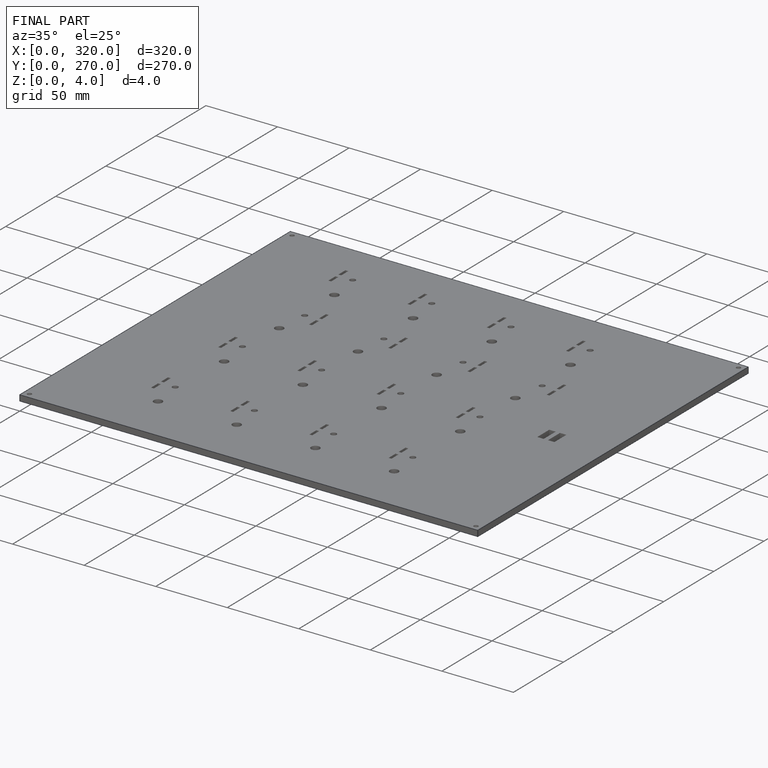
[diagram: finished part — iso view with bounding-box wireframe]
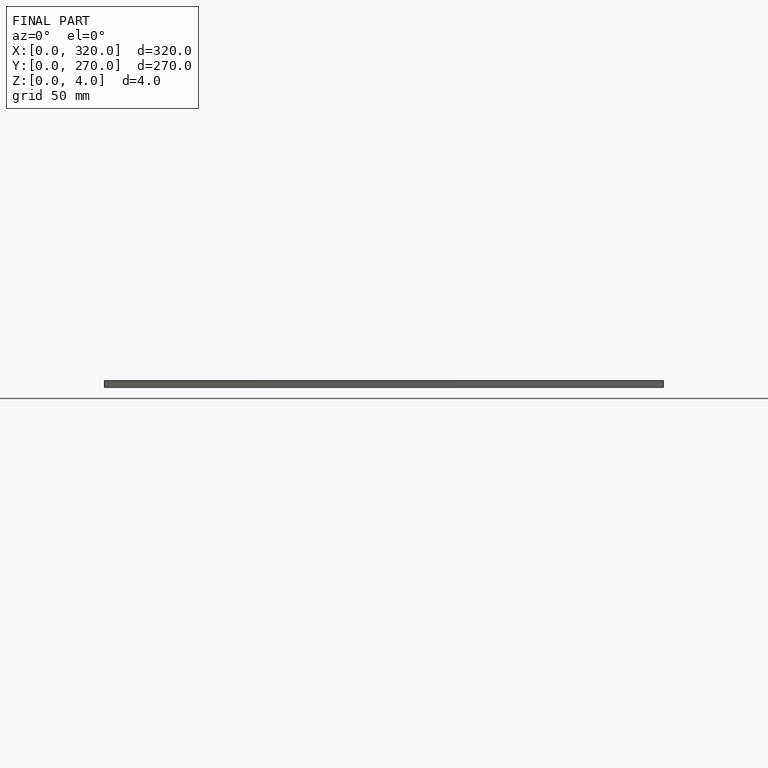
[diagram: finished part — front view with bounding-box wireframe]
